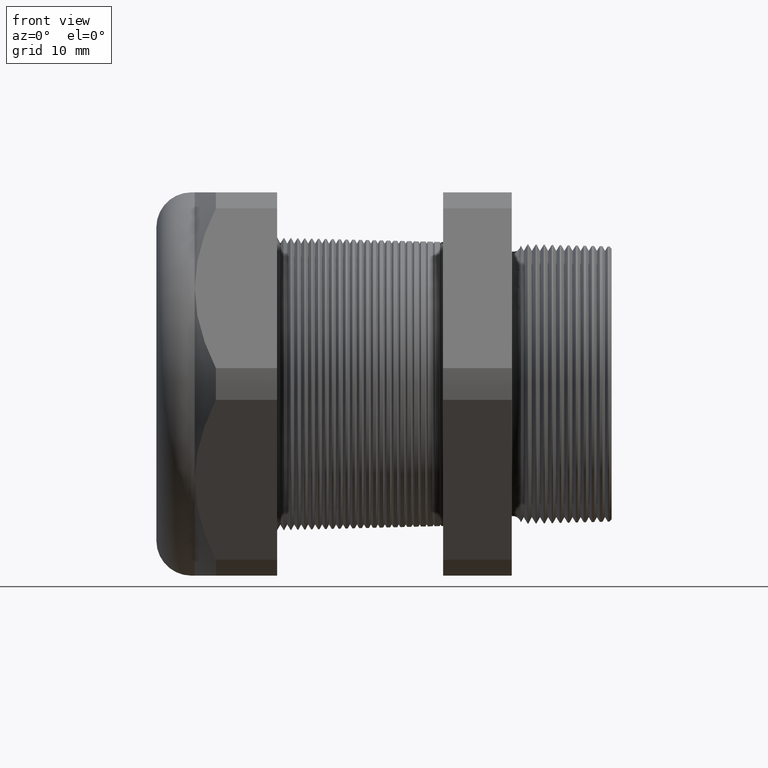
[diagram: clean part render]
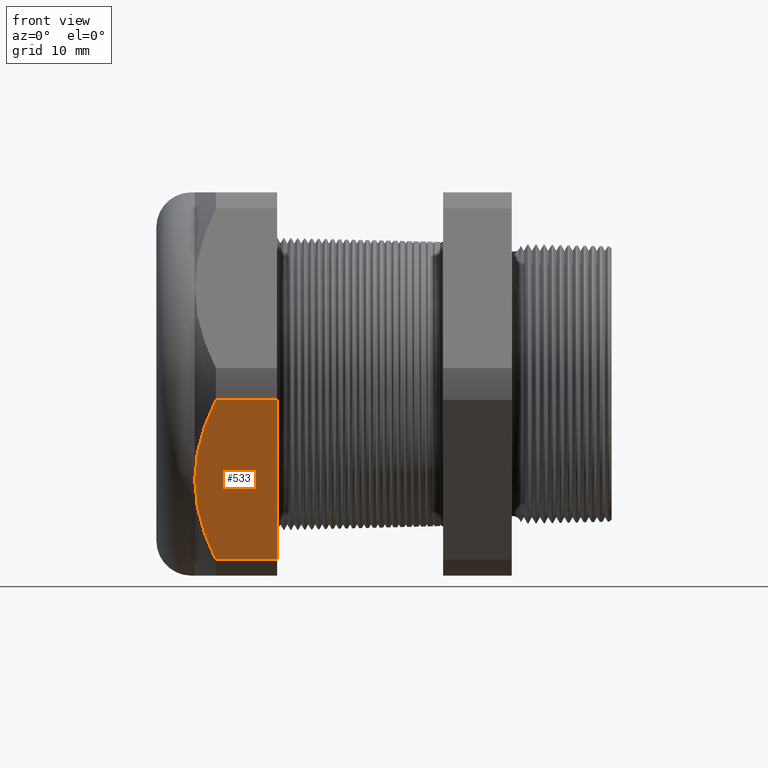
[diagram: same view with one face highlighted and labeled with its STEP entity id]
A machine part, front view. The second image highlights one B-rep face of the part: STEP entity #533.
In plain terms, the highlighted planar face has unit normal (0, -0.866, -0.5).
Its self-contained STEP definition (entity closure, byte-faithful):
#530 = VERTEX_POINT ( 'NONE', #2778 ) ;
#533 = ADVANCED_FACE ( 'NONE', ( #2772 ), #2770, .T. ) ;
#534 = EDGE_LOOP ( 'NONE', ( #535, #536, #594, #597, #600 ) ) ;
#535 = ORIENTED_EDGE ( 'NONE', *, *, #612, .T. ) ;
#536 = ORIENTED_EDGE ( 'NONE', *, *, #537, .T. ) ;
#537 = EDGE_CURVE ( 'NONE', #610, #593, #2823, .T. ) ;
#593 = VERTEX_POINT ( 'NONE', #2937 ) ;
#594 = ORIENTED_EDGE ( 'NONE', *, *, #595, .T. ) ;
#595 = EDGE_CURVE ( 'NONE', #593, #596, #2936, .T. ) ;
#596 = VERTEX_POINT ( 'NONE', #2921 ) ;
#597 = ORIENTED_EDGE ( 'NONE', *, *, #598, .F. ) ;
#598 = EDGE_CURVE ( 'NONE', #599, #596, #2975, .T. ) ;
#599 = VERTEX_POINT ( 'NONE', #2971 ) ;
#600 = ORIENTED_EDGE ( 'NONE', *, *, #601, .F. ) ;
#601 = EDGE_CURVE ( 'NONE', #530, #599, #2970, .T. ) ;
#610 = VERTEX_POINT ( 'NONE', #2954 ) ;
#612 = EDGE_CURVE ( 'NONE', #530, #610, #3013, .T. ) ;
#2766 = DIRECTION ( 'NONE',  ( 0.0000000000000000000, 0.5000000000000001100, -0.8660254037844386000 ) ) ;
#2767 = DIRECTION ( 'NONE',  ( 0.0000000000000000000, -0.8660254037844386000, -0.5000000000000001100 ) ) ;
#2768 = CARTESIAN_POINT ( 'NONE',  ( 0.1200000000000000900, -0.5157418318598038200, -0.7567089436301740500 ) ) ;
#2769 = AXIS2_PLACEMENT_3D ( 'NONE', #2768, #2767, #2766 ) ;
#2770 = PLANE ( 'NONE',  #2769 ) ;
#2772 = FACE_OUTER_BOUND ( 'NONE', #534, .T. ) ;
#2778 = CARTESIAN_POINT ( 'NONE',  ( -1.320314960629920700, -0.9132000843845193800, -0.06829105636982593700 ) ) ;
#2813 = CARTESIAN_POINT ( 'NONE',  ( -1.674645669291337600, -0.7144709581221614400, -0.4125000000000000900 ) ) ;
#2814 = CARTESIAN_POINT ( 'NONE',  ( -1.674645669291338300, -0.7230732368552935700, -0.3976004161733472400 ) ) ;
#2815 = CARTESIAN_POINT ( 'NONE',  ( -1.674101283086533200, -0.7317541954706494600, -0.3825645547931471000 ) ) ;
#2816 = CARTESIAN_POINT ( 'NONE',  ( -1.671939090580067500, -0.7490016981251833600, -0.3526910038918149000 ) ) ;
#2817 = CARTESIAN_POINT ( 'NONE',  ( -1.670328354707565600, -0.7575594521946481500, -0.3378685390448223400 ) ) ;
#2818 = CARTESIAN_POINT ( 'NONE',  ( -1.664003129424731500, -0.7830466726716900400, -0.2937233782348761500 ) ) ;
#2819 = CARTESIAN_POINT ( 'NONE',  ( -1.657795156961972700, -0.7997900393570254200, -0.2647230164461194000 ) ) ;
#2820 = CARTESIAN_POINT ( 'NONE',  ( -1.634021755025360000, -0.8493784731801424800, -0.1788333295967141600 ) ) ;
#2821 = CARTESIAN_POINT ( 'NONE',  ( -1.611338430126443100, -0.8815858103379831100, -0.1230485852628332000 ) ) ;
#2822 = CARTESIAN_POINT ( 'NONE',  ( -1.583895669291338000, -0.9132000843845193800, -0.06829105636982599200 ) ) ;
#2823 = B_SPLINE_CURVE_WITH_KNOTS ( 'NONE', 3,
 ( #2822, #2821, #2820, #2819, #2818, #2817, #2816, #2815, #2814, #2813 ),
 .UNSPECIFIED., .F., .F.,
 ( 4, 2, 2, 2, 4 ),
 ( 2.483247851934108500E-007, 0.005180948890086925500, 0.007771299172737792600, 0.009066474314063226500, 0.01036164945538866300 ),
 .UNSPECIFIED. ) ;
#2921 = CARTESIAN_POINT ( 'NONE',  ( -1.583895669291338000, -0.5157418318598037100, -0.7567089436301741600 ) ) ;
#2936 = B_SPLINE_CURVE_WITH_KNOTS ( 'NONE', 3,
 ( #2981, #2980, #2979, #2978, #2977, #2976 ),
 .UNSPECIFIED., .F., .F.,
 ( 4, 2, 4 ),
 ( 0.01036164945538866300, 0.01553879763505037300, 0.02071594581471208200 ),
 .UNSPECIFIED. ) ;
#2937 = CARTESIAN_POINT ( 'NONE',  ( -1.674645669291337600, -0.7144709581221614400, -0.4125000000000000900 ) ) ;
#2954 = CARTESIAN_POINT ( 'NONE',  ( -1.583895669291338000, -0.9132000843845193800, -0.06829105636982599200 ) ) ;
#2967 = DIRECTION ( 'NONE',  ( 0.0000000000000000000, 0.5000000000000002200, -0.8660254037844386000 ) ) ;
#2968 = VECTOR ( 'NONE', #2967, 39.37007874015747400 ) ;
#2969 = CARTESIAN_POINT ( 'NONE',  ( -1.320314960629920700, -0.5569709581221615700, -0.6852980021920982400 ) ) ;
#2970 = LINE ( 'NONE', #2969, #2968 ) ;
#2971 = CARTESIAN_POINT ( 'NONE',  ( -1.320314960629920700, -0.5157418318598037100, -0.7567089436301741600 ) ) ;
#2972 = DIRECTION ( 'NONE',  ( -1.000000000000000000, 0.0000000000000000000, 0.0000000000000000000 ) ) ;
#2973 = VECTOR ( 'NONE', #2972, 39.37007874015748100 ) ;
#2974 = CARTESIAN_POINT ( 'NONE',  ( 0.1200000000000000900, -0.5157418318598037100, -0.7567089436301741600 ) ) ;
#2975 = LINE ( 'NONE', #2974, #2973 ) ;
#2976 = CARTESIAN_POINT ( 'NONE',  ( -1.583895669291338000, -0.5157418318598037100, -0.7567089436301741600 ) ) ;
#2977 = CARTESIAN_POINT ( 'NONE',  ( -1.611372398164720300, -0.5473952373507809900, -0.7018836370872220100 ) ) ;
#2978 = CARTESIAN_POINT ( 'NONE',  ( -1.634375627289488000, -0.5801112555103120600, -0.6452178314135679200 ) ) ;
#2979 = CARTESIAN_POINT ( 'NONE',  ( -1.665964438283853200, -0.6463859596055077100, -0.5304266766640961500 ) ) ;
#2980 = CARTESIAN_POINT ( 'NONE',  ( -1.674645669291337400, -0.6800854373820096600, -0.4720574689666562400 ) ) ;
#2981 = CARTESIAN_POINT ( 'NONE',  ( -1.674645669291337600, -0.7144709581221614400, -0.4125000000000000900 ) ) ;
#3010 = DIRECTION ( 'NONE',  ( -1.000000000000000000, 0.0000000000000000000, 0.0000000000000000000 ) ) ;
#3011 = VECTOR ( 'NONE', #3010, 39.37007874015748100 ) ;
#3012 = CARTESIAN_POINT ( 'NONE',  ( 0.1200000000000000900, -0.9132000843845193800, -0.06829105636982593700 ) ) ;
#3013 = LINE ( 'NONE', #3012, #3011 ) ;